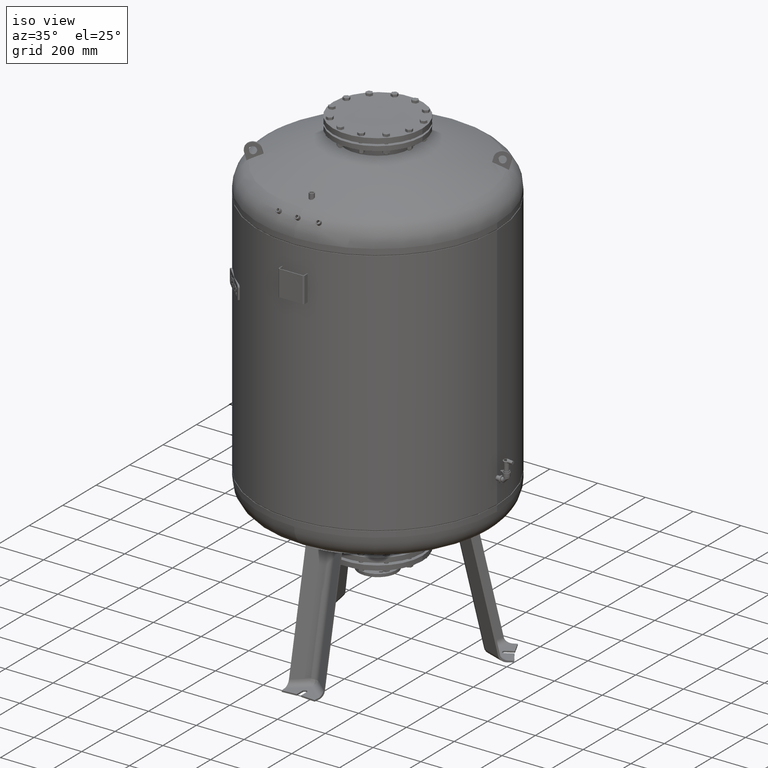
[diagram: clean part render]
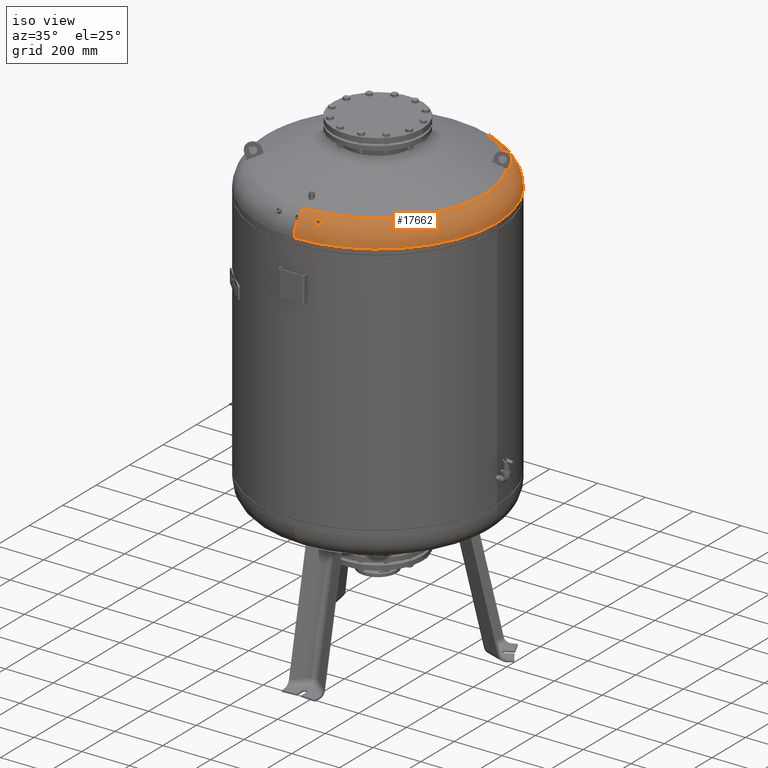
[diagram: same view with one face highlighted and labeled with its STEP entity id]
A machine part, iso view. The second image highlights one B-rep face of the part: STEP entity #17662.
In plain terms, the highlighted toroidal blend (fillet) surface has major radius 399.4 mm and minor (blend) radius 100.6 mm.
Its self-contained STEP definition (entity closure, byte-faithful):
#16573=CARTESIAN_POINT('',(-2.440638E-014,-481.277772533175660,1804.994541120563100));
#16574=VERTEX_POINT('',#16573);
#16590=CARTESIAN_POINT('',(-3.572896E-014,-469.189623608923340,1818.999930700816800));
#16591=VERTEX_POINT('',#16590);
#16770=CARTESIAN_POINT('',(80.066836435702669,-474.169703910089080,1805.544859291312400));
#16771=VERTEX_POINT('',#16770);
#16787=CARTESIAN_POINT('',(84.993415216716073,-461.933500427799120,1818.516956321284600));
#16788=VERTEX_POINT('',#16787);
#16795=CARTESIAN_POINT('',(81.473923119922318,-462.061578962946780,1818.999930700817500));
#16796=VERTEX_POINT('',#16795);
#16797=CARTESIAN_POINT('',(84.993415216716073,-461.933500427799120,1818.516956321284600));
#16798=CARTESIAN_POINT('',(84.503544824743670,-461.881321544061170,1818.653643192280700));
#16799=CARTESIAN_POINT('',(84.002442769029216,-461.858894011723810,1818.762270878815800));
#16800=CARTESIAN_POINT('',(82.822471138810215,-461.878254653280580,1818.946942504954200));
#16801=CARTESIAN_POINT('',(82.144598442698438,-461.943320808245910,1818.999930700817500));
#16802=CARTESIAN_POINT('',(81.473923119922304,-462.061578962946730,1818.999930700817500));
#16803=B_SPLINE_CURVE_WITH_KNOTS('',3,(#16797,#16798,#16799,#16800,#16801,#16802),.UNSPECIFIED.,.F.,.U.,(4,2,4),(54.717280967176926,56.257708759570029,58.300773471615884),.UNSPECIFIED.);
#16804=EDGE_CURVE('',#16788,#16796,#16803,.T.);
#16806=CARTESIAN_POINT('',(81.473923119922304,-462.061578962946730,1818.999930700817500));
#16807=CARTESIAN_POINT('',(80.270940661179878,-462.273697227741990,1818.999930700817500));
#16808=CARTESIAN_POINT('',(79.110151202356022,-462.653940908312680,1818.829779195902300));
#16809=CARTESIAN_POINT('',(77.003352938368124,-463.701225683752060,1818.162764582918300));
#16810=CARTESIAN_POINT('',(76.078610963546808,-464.358213497496930,1817.671570749344300));
#16811=CARTESIAN_POINT('',(74.666555324185623,-465.772515080668030,1816.480263545121700));
#16812=CARTESIAN_POINT('',(74.156046716611357,-466.502070575653650,1815.814790599600400));
#16813=CARTESIAN_POINT('',(73.546890366332462,-467.891027049919780,1814.442578504223800));
#16814=CARTESIAN_POINT('',(73.402751556737073,-468.536980418619810,1813.763934437494500));
#16815=CARTESIAN_POINT('',(73.397271381861728,-469.764387575231640,1812.388972231687800));
#16816=CARTESIAN_POINT('',(73.523644048795887,-470.340643221260680,1811.702391432047500));
#16817=CARTESIAN_POINT('',(74.054685122545507,-471.470554353407810,1810.267063871446700));
#16818=CARTESIAN_POINT('',(74.485445672046993,-472.006748614220500,1809.529719696096700));
#16819=CARTESIAN_POINT('',(75.744352307216062,-473.029685942925310,1807.998329940812500));
#16820=CARTESIAN_POINT('',(76.628183333923275,-473.467721184790610,1807.244530667284600));
#16821=CARTESIAN_POINT('',(78.400858852786158,-473.978097657179550,1806.183218530508400));
#16822=CARTESIAN_POINT('',(79.214345949321881,-474.114157329458290,1805.816526345943900));
#16823=CARTESIAN_POINT('',(80.066836435702669,-474.169703910089080,1805.544859291312400));
#16824=B_SPLINE_CURVE_WITH_KNOTS('',3,(#16806,#16807,#16808,#16809,#16810,#16811,#16812,#16813,#16814,#16815,#16816,#16817,#16818,#16819,#16820,#16821,#16822,#16823),.UNSPECIFIED.,.F.,.U.,(4,2,2,2,2,2,2,2,4),(0.0,3.664621206716430,7.336696746492708,10.645141642724678,13.472869490676285,16.174622177224034,19.180003853472179,22.867295390501965,25.565018784729983),.UNSPECIFIED.);
#16825=EDGE_CURVE('',#16796,#16771,#16824,.T.);
#17363=CARTESIAN_POINT('',(500.0,-3.553717E-014,1746.544644927280400));
#17364=VERTEX_POINT('',#17363);
#17388=CARTESIAN_POINT('',(3.753887E-014,499.999999999999940,1746.544644927280400));
#17389=VERTEX_POINT('',#17388);
#17397=CARTESIAN_POINT('',(2.260647E-015,-3.553717E-014,1746.544644927280400));
#17398=DIRECTION('',(0.0,0.0,-1.0));
#17399=DIRECTION('',(1.0,0.0,0.0));
#17400=AXIS2_PLACEMENT_3D('',#17397,#17398,#17399);
#17401=CIRCLE('',#17400,500.0);
#17402=EDGE_CURVE('',#17389,#17364,#17401,.T.);
#17512=CARTESIAN_POINT('',(-2.369145E-014,-3.553717E-014,1746.544644927280400));
#17513=DIRECTION('',(1.168563E-017,-1.836970E-016,-1.0));
#17514=DIRECTION('',(0.0,-1.0,0.0));
#17515=AXIS2_PLACEMENT_3D('',#17512,#17513,#17514);
#17516=TOROIDAL_SURFACE('',#17515,399.399999999999920,100.600000000000010);
#17517=CARTESIAN_POINT('',(-2.369145E-014,-500.000000000000060,1746.544644927280400));
#17518=VERTEX_POINT('',#17517);
#17519=CARTESIAN_POINT('',(-2.369145E-014,-399.399999999999980,1746.544644927280400));
#17520=DIRECTION('',(-1.0,0.0,0.0));
#17521=DIRECTION('',(0.0,-1.0,0.0));
#17522=AXIS2_PLACEMENT_3D('',#17519,#17520,#17521);
#17523=CIRCLE('',#17522,100.600000000000010);
#17524=EDGE_CURVE('',#17518,#16574,#17523,.T.);
#17525=ORIENTED_EDGE('',*,*,#17524,.F.);
#17526=CARTESIAN_POINT('',(2.260647E-015,-3.553717E-014,1746.544644927280400));
#17527=DIRECTION('',(0.0,0.0,-1.0));
#17528=DIRECTION('',(1.0,0.0,0.0));
#17529=AXIS2_PLACEMENT_3D('',#17526,#17527,#17528);
#17530=CIRCLE('',#17529,500.0);
#17531=EDGE_CURVE('',#17364,#17518,#17530,.T.);
#17532=ORIENTED_EDGE('',*,*,#17531,.F.);
#17533=ORIENTED_EDGE('',*,*,#17402,.F.);
#17534=CARTESIAN_POINT('',(2.959885E-014,443.777777777777600,1836.827383252533800));
#17535=VERTEX_POINT('',#17534);
#17536=CARTESIAN_POINT('',(2.521933E-014,399.399999999999860,1746.544644927280400));
#17537=DIRECTION('',(1.0,0.0,0.0));
#17538=DIRECTION('',(0.0,1.0,0.0));
#17539=AXIS2_PLACEMENT_3D('',#17536,#17537,#17538);
#17540=CIRCLE('',#17539,100.600000000000010);
#17541=EDGE_CURVE('',#17389,#17535,#17540,.T.);
#17542=ORIENTED_EDGE('',*,*,#17541,.T.);
#17543=CARTESIAN_POINT('',(382.814047410498800,224.481894937152840,1836.827383252533800));
#17544=VERTEX_POINT('',#17543);
#17545=CARTESIAN_POINT('',(1.205637E-015,-1.895250E-014,1836.827383252533800));
#17546=DIRECTION('',(0.0,0.0,-1.0));
#17547=DIRECTION('',(1.0,0.0,0.0));
#17548=AXIS2_PLACEMENT_3D('',#17545,#17546,#17547);
#17549=CIRCLE('',#17548,443.777777777777600);
#17550=EDGE_CURVE('',#17535,#17544,#17549,.T.);
#17551=ORIENTED_EDGE('',*,*,#17550,.T.);
#17552=CARTESIAN_POINT('',(389.830975236120140,228.533120106159600,1832.371241859355700));
#17553=VERTEX_POINT('',#17552);
#17554=CARTESIAN_POINT('',(382.814047410498800,224.481894937152840,1836.827383252533800));
#17555=CARTESIAN_POINT('',(383.639422866123480,224.958425678640250,1836.358923998316000));
#17556=CARTESIAN_POINT('',(384.466016830460770,225.435659926460910,1835.871006334071100));
#17557=CARTESIAN_POINT('',(386.558917595189540,226.643996746364280,1834.585746300583200));
#17558=CARTESIAN_POINT('',(387.823245864690140,227.373957013104530,1833.762717578220400));
#17559=CARTESIAN_POINT('',(389.327563745971080,228.242475346808870,1832.724648865125300));
#17560=CARTESIAN_POINT('',(389.579557890296660,228.387964233869470,1832.548753709753100));
#17561=CARTESIAN_POINT('',(389.830975236120140,228.533120106159600,1832.371241859355700));
#17562=B_SPLINE_CURVE_WITH_KNOTS('',3,(#17554,#17555,#17556,#17557,#17558,#17559,#17560,#17561),.UNSPECIFIED.,.F.,.U.,(4,2,2,4),(490.490461707606410,493.520789239596300,498.176642435137920,499.115761009270220),.UNSPECIFIED.);
#17563=EDGE_CURVE('',#17544,#17553,#17562,.T.);
#17564=ORIENTED_EDGE('',*,*,#17563,.T.);
#17565=CARTESIAN_POINT('',(392.830975236120080,223.336967683452970,1832.371241859355700));
#17566=VERTEX_POINT('',#17565);
#17567=CARTESIAN_POINT('',(389.830975236120140,228.533120106159600,1832.371241859355700));
#17568=CARTESIAN_POINT('',(390.333307968774880,227.664983484212660,1832.374723691362300));
#17569=CARTESIAN_POINT('',(390.833741791658330,226.799162381118410,1832.376448557724000));
#17570=CARTESIAN_POINT('',(391.332224433282480,225.935765119134290,1832.376448557724000));
#17571=CARTESIAN_POINT('',(391.830707074909470,225.072367857145200,1832.376448557724000));
#17572=CARTESIAN_POINT('',(392.330313233882860,224.206068902062920,1832.374723691362300));
#17573=CARTESIAN_POINT('',(392.830975236120080,223.336967683452970,1832.371241859355700));
#17574=B_SPLINE_CURVE_WITH_KNOTS('',3,(#17567,#17568,#17569,#17570,#17571,#17572,#17573),.UNSPECIFIED.,.F.,.U.,(4,3,4),(-2.990895849744737,0.0,2.990895849762006),.UNSPECIFIED.);
#17575=EDGE_CURVE('',#17553,#17566,#17574,.T.);
#17576=ORIENTED_EDGE('',*,*,#17575,.T.);
#17577=CARTESIAN_POINT('',(385.814047410498740,219.285742514446160,1836.827383252533800));
#17578=VERTEX_POINT('',#17577);
#17579=CARTESIAN_POINT('',(392.830975236120080,223.336967683452970,1832.371241859355700));
#17580=CARTESIAN_POINT('',(392.579557890296540,223.191811811162810,1832.548753709753100));
#17581=CARTESIAN_POINT('',(392.327563745971020,223.046322924102180,1832.724648865125300));
#17582=CARTESIAN_POINT('',(390.823245864689970,222.177804590397760,1833.762717578220600));
#17583=CARTESIAN_POINT('',(389.558917595189310,221.447844323657480,1834.585746300583200));
#17584=CARTESIAN_POINT('',(387.466016830460660,220.239507503754170,1835.871006334071100));
#17585=CARTESIAN_POINT('',(386.639422866123310,219.762273255933510,1836.358923998316000));
#17586=CARTESIAN_POINT('',(385.814047410498740,219.285742514446160,1836.827383252533800));
#17587=B_SPLINE_CURVE_WITH_KNOTS('',3,(#17579,#17580,#17581,#17582,#17583,#17584,#17585,#17586),.UNSPECIFIED.,.F.,.U.,(4,2,2,4),(96.832413882587730,97.771532456720365,102.427385652262000,105.457713184251520),.UNSPECIFIED.);
#17588=EDGE_CURVE('',#17566,#17578,#17587,.T.);
#17589=ORIENTED_EDGE('',*,*,#17588,.T.);
#17590=CARTESIAN_POINT('',(-2.474646E-014,-443.777777777777600,1836.827383252533800));
#17591=VERTEX_POINT('',#17590);
#17592=CARTESIAN_POINT('',(1.205637E-015,-1.895250E-014,1836.827383252533800));
#17593=DIRECTION('',(0.0,0.0,-1.0));
#17594=DIRECTION('',(1.0,0.0,0.0));
#17595=AXIS2_PLACEMENT_3D('',#17592,#17593,#17594);
#17596=CIRCLE('',#17595,443.777777777777600);
#17597=EDGE_CURVE('',#17578,#17591,#17596,.T.);
#17598=ORIENTED_EDGE('',*,*,#17597,.T.);
#17599=CARTESIAN_POINT('',(-2.369145E-014,-399.399999999999980,1746.544644927280400));
#17600=DIRECTION('',(-1.0,0.0,0.0));
#17601=DIRECTION('',(0.0,-1.0,0.0));
#17602=AXIS2_PLACEMENT_3D('',#17599,#17600,#17601);
#17603=CIRCLE('',#17602,100.600000000000010);
#17604=EDGE_CURVE('',#16591,#17591,#17603,.T.);
#17605=ORIENTED_EDGE('',*,*,#17604,.F.);
#17606=CARTESIAN_POINT('',(-2.440638E-014,-481.277772533175660,1804.994541120563100));
#17607=CARTESIAN_POINT('',(0.663767693420876,-481.277772533175660,1804.994541120563100));
#17608=CARTESIAN_POINT('',(1.327132407291983,-481.235255460921620,1805.052283119416900));
#17609=CARTESIAN_POINT('',(3.172470167635499,-480.993992577751440,1805.378158901997900));
#17610=CARTESIAN_POINT('',(4.302304662895460,-480.697975751295870,1805.777429773388600));
#17611=CARTESIAN_POINT('',(6.300367150350057,-479.850692324963290,1806.893946849666200));
#17612=CARTESIAN_POINT('',(7.150217738928611,-479.308093242282890,1807.599111698446200));
#17613=CARTESIAN_POINT('',(8.319777860177481,-478.164700028228940,1809.040818505617200));
#17614=CARTESIAN_POINT('',(8.706424071928504,-477.606888046208210,1809.730849947240800));
#17615=CARTESIAN_POINT('',(9.138956108212256,-476.550009975629050,1811.005773639236800));
#17616=CARTESIAN_POINT('',(9.239621495916103,-476.069154533581920,1811.575460062544400));
#17617=CARTESIAN_POINT('',(9.258537269256525,-475.107555070033870,1812.692848427051600));
#17618=CARTESIAN_POINT('',(9.182647495145238,-474.630784217413410,1813.236649376827700));
#17619=CARTESIAN_POINT('',(8.830953197445302,-473.592961342907530,1814.399460517053700));
#17620=CARTESIAN_POINT('',(8.519238167698774,-473.039967067691240,1815.005072139537300));
#17621=CARTESIAN_POINT('',(7.501686877240208,-471.784423628546960,1816.354741354832200));
#17622=CARTESIAN_POINT('',(6.696554039162005,-471.126680230690230,1817.039688728346800));
#17623=CARTESIAN_POINT('',(4.844206906027964,-470.104528269520240,1818.087050795337700));
#17624=CARTESIAN_POINT('',(3.838519807076489,-469.728695196732190,1818.463477571226100));
#17625=CARTESIAN_POINT('',(1.868068541252256,-469.291199432981440,1818.899740677942900));
#17626=CARTESIAN_POINT('',(0.936826815871944,-469.189623608923280,1818.999930700816800));
#17627=CARTESIAN_POINT('',(-3.572896E-014,-469.189623608923280,1818.999930700816800));
#17628=B_SPLINE_CURVE_WITH_KNOTS('',3,(#17606,#17607,#17608,#17609,#17610,#17611,#17612,#17613,#17614,#17615,#17616,#17617,#17618,#17619,#17620,#17621,#17622,#17623,#17624,#17625,#17626,#17627),.UNSPECIFIED.,.F.,.U.,(4,2,2,2,2,2,2,2,2,2,4),(29.145313870326323,31.146215195881425,34.813475803036134,38.468575725547367,41.354726520520913,43.603449066426087,45.777737681779072,48.396886370345513,52.094681779719743,55.479428103079613,58.289908550695550),.UNSPECIFIED.);
#17629=EDGE_CURVE('',#16574,#16591,#17628,.T.);
#17630=ORIENTED_EDGE('',*,*,#17629,.F.);
#17631=EDGE_LOOP('',(#17525,#17532,#17533,#17542,#17551,#17564,#17576,#17589,#17598,#17605,#17630));
#17632=FACE_OUTER_BOUND('',#17631,.T.);
#17633=ORIENTED_EDGE('',*,*,#16825,.F.);
#17634=ORIENTED_EDGE('',*,*,#16804,.F.);
#17635=CARTESIAN_POINT('',(80.066836435702669,-474.169703910089080,1805.544859291312400));
#17636=CARTESIAN_POINT('',(80.315290421202349,-474.185892676484800,1805.465683319814200));
#17637=CARTESIAN_POINT('',(80.567055814395701,-474.195236766448320,1805.394572741378400));
#17638=CARTESIAN_POINT('',(81.975782245854333,-474.208846044477410,1805.047261591973000));
#17639=CARTESIAN_POINT('',(83.163543889568857,-474.078529688450090,1804.940843680592300));
#17640=CARTESIAN_POINT('',(85.513696161117423,-473.543701777092790,1805.101539526411200));
#17641=CARTESIAN_POINT('',(86.649886617399389,-473.136085914994910,1805.378947216424400));
#17642=CARTESIAN_POINT('',(88.673379002015594,-472.088947728394430,1806.284448431172500));
#17643=CARTESIAN_POINT('',(89.540955749349209,-471.459742967043840,1806.902932775675700));
#17644=CARTESIAN_POINT('',(90.810704456191033,-470.126411924304310,1808.303193733366500));
#17645=CARTESIAN_POINT('',(91.244393478903731,-469.448437788365420,1809.048146560683100));
#17646=CARTESIAN_POINT('',(91.708219907117254,-468.140229586524130,1810.524514464103300));
#17647=CARTESIAN_POINT('',(91.783015315883944,-467.523850855581490,1811.235044307170900));
#17648=CARTESIAN_POINT('',(91.649309327879109,-466.332818489340010,1812.631079989716200));
#17649=CARTESIAN_POINT('',(91.452490219423183,-465.764071585310430,1813.308750149637000));
#17650=CARTESIAN_POINT('',(90.770288478877433,-464.629336569024360,1814.687431400224600));
#17651=CARTESIAN_POINT('',(90.257814786335942,-464.079701137242920,1815.371992092357500));
#17652=CARTESIAN_POINT('',(88.830486416840472,-463.026552164636030,1816.739698777479400));
#17653=CARTESIAN_POINT('',(87.866386218523488,-462.569861802145790,1817.376609856126400));
#17654=CARTESIAN_POINT('',(86.209105977873747,-462.112051732879710,1818.128306691291100));
#17655=CARTESIAN_POINT('',(85.610161947052347,-461.999193632502570,1818.344867576693800));
#17656=CARTESIAN_POINT('',(84.993415216716073,-461.933500427799120,1818.516956321284600));
#17657=B_SPLINE_CURVE_WITH_KNOTS('',3,(#17635,#17636,#17637,#17638,#17639,#17640,#17641,#17642,#17643,#17644,#17645,#17646,#17647,#17648,#17649,#17650,#17651,#17652,#17653,#17654,#17655,#17656),.UNSPECIFIED.,.F.,.U.,(4,2,2,2,2,2,2,2,2,2,4),(25.565018784729983,26.351256449290144,29.918055138783192,33.598090588564858,37.273576199404459,40.538044904237033,43.352907588273524,46.057931291471377,49.087501744354789,52.777882669491767,54.717280967176926),.UNSPECIFIED.);
#17658=EDGE_CURVE('',#16771,#16788,#17657,.T.);
#17659=ORIENTED_EDGE('',*,*,#17658,.F.);
#17660=EDGE_LOOP('',(#17633,#17634,#17659));
#17661=FACE_BOUND('',#17660,.T.);
#17662=ADVANCED_FACE('',(#17632,#17661),#17516,.T.);